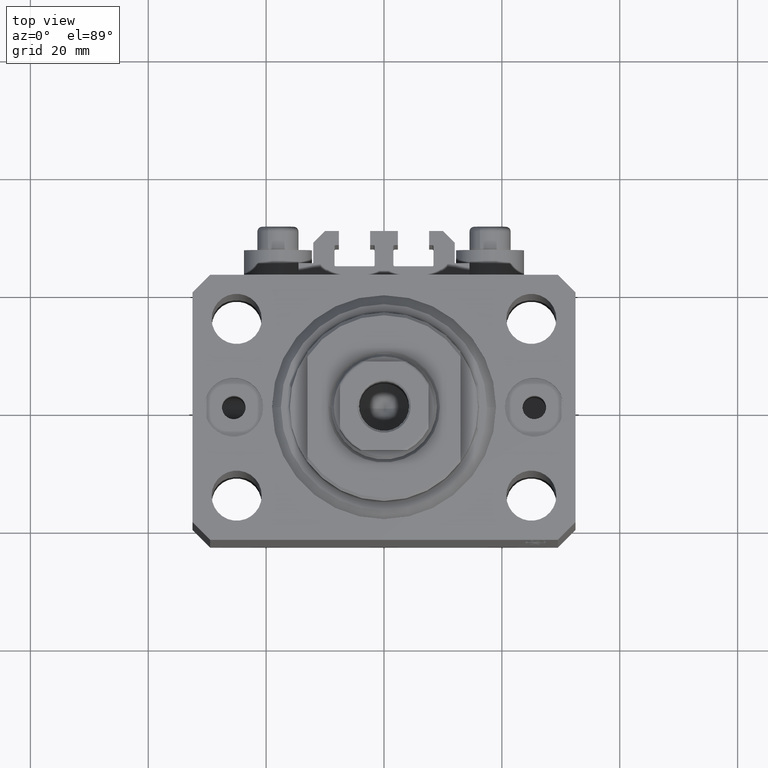
[diagram: clean part render]
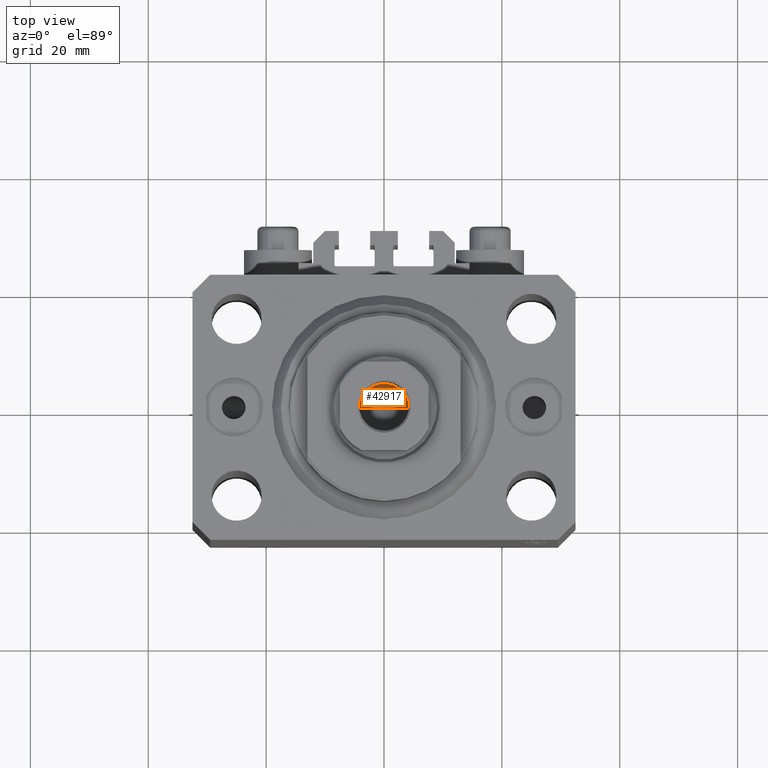
[diagram: same view with one face highlighted and labeled with its STEP entity id]
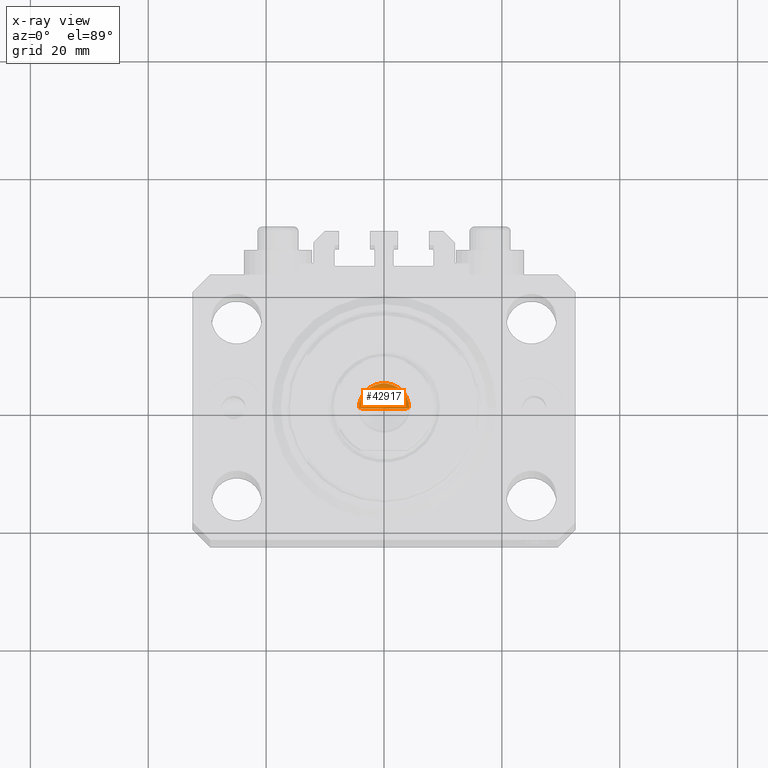
[diagram: x-ray of the same camera — body ghosted, the highlighted face saturated]
A machine part, top view. The second image highlights one B-rep face of the part: STEP entity #42917.
The next image is the same camera in x-ray: the body ghosted, the highlighted face saturated — about 0% of this face is hidden behind the body in this view.
In plain terms, the highlighted conical surface has half-angle 59 deg.
Its self-contained STEP definition (entity closure, byte-faithful):
#4677 = EDGE_CURVE ( 'NONE', #39546, #23857, #43948, .T. ) ;
#5056 = ORIENTED_EDGE ( 'NONE', *, *, #30201, .T. ) ;
#6326 = DIRECTION ( 'NONE',  ( -0.000000000000000000, -0.000000000000000000, 1.000000000000000000 ) ) ;
#6880 = VERTEX_POINT ( 'NONE', #46279 ) ;
#10587 = CARTESIAN_POINT ( 'NONE',  ( 0.000000000000000000, 0.000000000000000000, 59.00000000000000711 ) ) ;
#10604 = VECTOR ( 'NONE', #22676, 1000.000000000000000 ) ;
#10835 = DIRECTION ( 'NONE',  ( 1.000000000000000000, 0.000000000000000000, 0.000000000000000000 ) ) ;
#15260 = CARTESIAN_POINT ( 'NONE',  ( -4.249999999999994671, 5.204748896376244783E-16, 59.00000000000000711 ) ) ;
#15421 = VECTOR ( 'NONE', #23427, 1000.000000000000000 ) ;
#18465 = CARTESIAN_POINT ( 'NONE',  ( -4.249999999999994671, 5.204748896376244783E-16, 59.00000000000000711 ) ) ;
#19494 = AXIS2_PLACEMENT_3D ( 'NONE', #10587, #29459, #10835 ) ;
#20309 = CARTESIAN_POINT ( 'NONE',  ( 4.249999999999994671, 0.000000000000000000, 59.00000000000000711 ) ) ;
#22234 = CIRCLE ( 'NONE', #30598, 4.249999999999994671 ) ;
#22676 = DIRECTION ( 'NONE',  ( -0.8571673007021117785, 1.049727191138617956E-16, 0.5150380749100550437 ) ) ;
#23427 = DIRECTION ( 'NONE',  ( 0.8571673007021117785, 0.000000000000000000, 0.5150380749100550437 ) ) ;
#23714 = CARTESIAN_POINT ( 'NONE',  ( -6.748699724488696097E-15, 0.000000000000000000, 56.44634236913287140 ) ) ;
#23857 = VERTEX_POINT ( 'NONE', #18465 ) ;
#25412 = FACE_OUTER_BOUND ( 'NONE', #41091, .T. ) ;
#28944 = EDGE_CURVE ( 'NONE', #6880, #23857, #22234, .T. ) ;
#29459 = DIRECTION ( 'NONE',  ( -0.000000000000000000, -0.000000000000000000, 1.000000000000000000 ) ) ;
#30201 = EDGE_CURVE ( 'NONE', #39546, #6880, #45619, .T. ) ;
#30598 = AXIS2_PLACEMENT_3D ( 'NONE', #43803, #6326, #42864 ) ;
#39546 = VERTEX_POINT ( 'NONE', #23714 ) ;
#41091 = EDGE_LOOP ( 'NONE', ( #46969, #5056, #41360 ) ) ;
#41360 = ORIENTED_EDGE ( 'NONE', *, *, #28944, .T. ) ;
#42864 = DIRECTION ( 'NONE',  ( 1.000000000000000000, 0.000000000000000000, 0.000000000000000000 ) ) ;
#42917 = ADVANCED_FACE ( 'NONE', ( #25412 ), #46216, .F. ) ;
#43803 = CARTESIAN_POINT ( 'NONE',  ( 0.000000000000000000, 0.000000000000000000, 59.00000000000000711 ) ) ;
#43948 = LINE ( 'NONE', #15260, #10604 ) ;
#45619 = LINE ( 'NONE', #20309, #15421 ) ;
#46216 = CONICAL_SURFACE ( 'NONE', #19494, 4.249999999999994671, 1.029744258676653423 ) ;
#46279 = CARTESIAN_POINT ( 'NONE',  ( 4.249999999999994671, 0.000000000000000000, 59.00000000000000711 ) ) ;
#46969 = ORIENTED_EDGE ( 'NONE', *, *, #4677, .F. ) ;